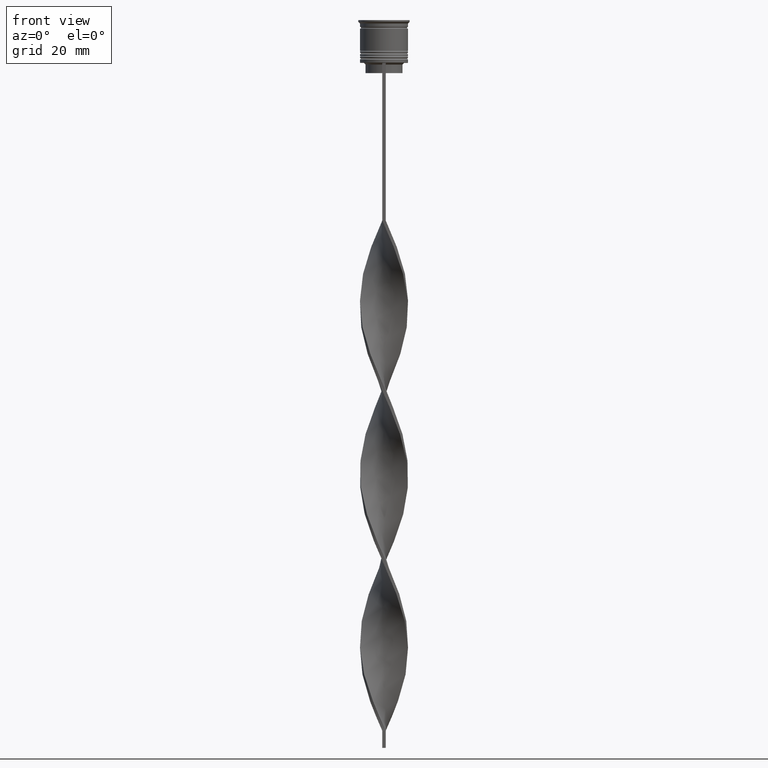
[diagram: clean part render]
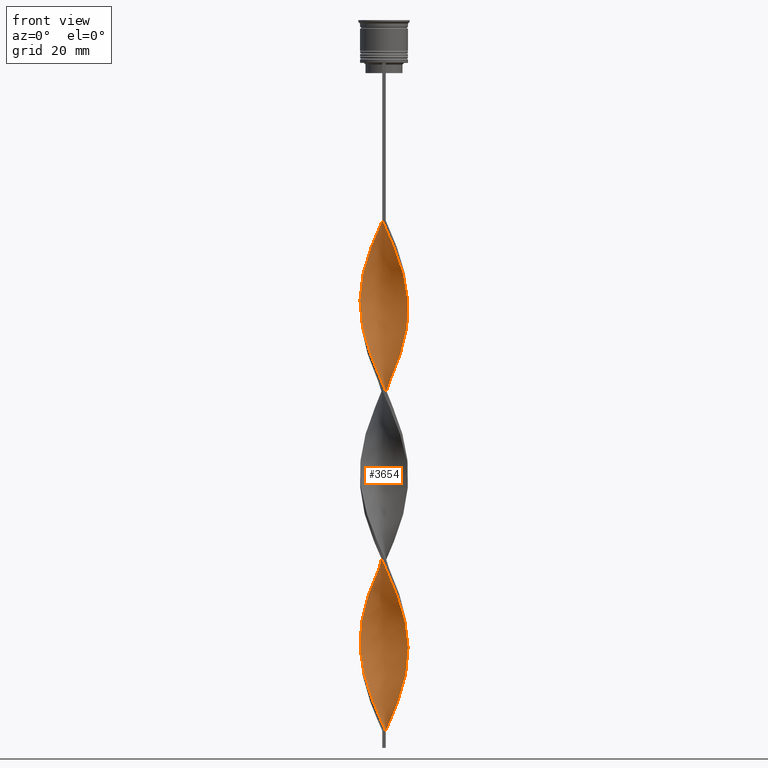
[diagram: same view with one face highlighted and labeled with its STEP entity id]
A machine part, front view. The second image highlights one B-rep face of the part: STEP entity #3654.
In plain terms, the highlighted face is a freeform B-spline surface patch.
Its self-contained STEP definition (entity closure, byte-faithful):
#8 = CARTESIAN_POINT ( 'NONE',  ( 3.259916572276687852, 6.214736031545977646, -149.0686274509803866 ) ) ;
#9 = CARTESIAN_POINT ( 'NONE',  ( -0.5000000000000000000, -6.999999999999997335, -58.50000000000000000 ) ) ;
#23 = CARTESIAN_POINT ( 'NONE',  ( 4.856933420439684568, -5.107160209221783376, -71.64705882352942012 ) ) ;
#44 = CARTESIAN_POINT ( 'NONE',  ( 5.533515242862682371, 4.364985304700184976, -95.01960784313726549 ) ) ;
#73 = CARTESIAN_POINT ( 'NONE',  ( -4.856933420439685456, 5.107160209221782488, -121.3137254901960631 ) ) ;
#85 = CARTESIAN_POINT ( 'NONE',  ( -4.346365046915568797, 5.509910242367891620, -119.8529411764705799 ) ) ;
#96 = CARTESIAN_POINT ( 'NONE',  ( -6.869610997245771955, -1.434728108918169154, -137.3823529411764639 ) ) ;
#114 = CARTESIAN_POINT ( 'NONE',  ( 4.110133708006296516, 5.688303868668619145, -99.40196078431372939 ) ) ;
#120 = CARTESIAN_POINT ( 'NONE',  ( 5.887437909151303828, 3.819433841014672648, -192.8921568627450824 ) ) ;
#133 = CARTESIAN_POINT ( 'NONE',  ( -6.869610997245777284, 1.434728108918170708, -78.95098039215686470 ) ) ;
#153 = CARTESIAN_POINT ( 'NONE',  ( 2.684036471161911575, 6.516811787577958981, -150.5294117647058840 ) ) ;
#157 = CARTESIAN_POINT ( 'NONE',  ( 6.869610997245771955, 1.434728108918170042, -187.0490196078431211 ) ) ;
#166 = CARTESIAN_POINT ( 'NONE',  ( -7.016273413796890956, -0.1480114280955932282, -134.4607843137254974 ) ) ;
#175 = CARTESIAN_POINT ( 'NONE',  ( 5.887437909151305604, -3.819433841014677533, -122.7745098039215605 ) ) ;
#176 = CARTESIAN_POINT ( 'NONE',  ( 4.856933420439684568, -5.107160209221783376, -71.64705882352943433 ) ) ;
#177 = CARTESIAN_POINT ( 'NONE',  ( 2.994927778012250741, -6.346684772736916003, -114.0098039215686185 ) ) ;
#182 = CARTESIAN_POINT ( 'NONE',  ( -4.637232685409776067, -5.307443892742481850, -147.6078431372548891 ) ) ;
#192 = CARTESIAN_POINT ( 'NONE',  ( 4.346365046915571462, 5.509910242367894284, -146.1470588235294201 ) ) ;
#194 = CARTESIAN_POINT ( 'NONE',  ( -1.440874626053876728, -6.899041090270183751, -103.7843137254901933 ) ) ;
#201 = CARTESIAN_POINT ( 'NONE',  ( -6.489012217373701930, -2.672586844758237490, -140.3039215686274588 ) ) ;
#217 = CARTESIAN_POINT ( 'NONE',  ( 3.583034730602820073, -6.069163844594761770, -115.4705882352941018 ) ) ;
#220 = CARTESIAN_POINT ( 'NONE',  ( 0.4999999999999991673, -7.000000000000002665, -108.1666666666666572 ) ) ;
#240 = CARTESIAN_POINT ( 'NONE',  ( -5.284803272772051308, -4.617451068294915473, -93.55882352941176805 ) ) ;
#259 = CARTESIAN_POINT ( 'NONE',  ( -0.5000000000000000000, 7.000000000000002665, -58.50000000000000000 ) ) ;
#260 = CARTESIAN_POINT ( 'NONE',  ( -3.259916572276684299, -6.214736031545979422, -198.7352941176470722 ) ) ;
#263 = CARTESIAN_POINT ( 'NONE',  ( -4.637232685409779620, 5.307443892742487179, -168.0588235294117680 ) ) ;
#284 = CARTESIAN_POINT ( 'NONE',  ( 6.595948007173689120, -2.396553752090988088, -78.95098039215686470 ) ) ;
#286 = CARTESIAN_POINT ( 'NONE',  ( -4.110133708006299180, 5.688303868668623586, -166.5980392156862706 ) ) ;
#316 = CARTESIAN_POINT ( 'NONE',  ( 7.016273413796890956, 0.1480114280955957262, -184.1274509803921546 ) ) ;
#324 = CARTESIAN_POINT ( 'NONE',  ( -5.712673125104412719, -4.127741927368047570, -191.4313725490196134 ) ) ;
#341 = CARTESIAN_POINT ( 'NONE',  ( -2.684036471161914239, -6.516811787577958093, -200.1960784313725696 ) ) ;
#349 = CARTESIAN_POINT ( 'NONE',  ( 0.5000000000000003331, 2.333333333333331261, -207.5000000000000000 ) ) ;
#388 = CARTESIAN_POINT ( 'NONE',  ( 2.406820825421679189, 6.624205700879066683, -103.7843137254901933 ) ) ;
#396 = CARTESIAN_POINT ( 'NONE',  ( -2.062455548607892375, 6.707926438924063817, -114.0098039215686185 ) ) ;
#409 = CARTESIAN_POINT ( 'NONE',  ( 6.818021416257458611, -1.785349159323424972, -179.7450980392157192 ) ) ;
#430 = CARTESIAN_POINT ( 'NONE',  ( -3.583034730602820961, 6.069163844594761770, -65.80392156862745878 ) ) ;
#433 = CARTESIAN_POINT ( 'NONE',  ( 0.7947600748740408783, -6.972686456695594615, -160.7549019607842808 ) ) ;
#438 = CARTESIAN_POINT ( 'NONE',  ( -0.5000000000000000000, -6.999999999999997335, -58.50000000000000000 ) ) ;
#451 = CARTESIAN_POINT ( 'NONE',  ( 5.085373964136230107, 4.836214598721332081, -96.48039215686274872 ) ) ;
#456 = CARTESIAN_POINT ( 'NONE',  ( 0.5000000000000008882, 6.999999999999997335, -207.5000000000000000 ) ) ;
#457 = CARTESIAN_POINT ( 'NONE',  ( 4.637232685409776067, 5.307443892742482738, -197.2745098039215463 ) ) ;
#466 = CARTESIAN_POINT ( 'NONE',  ( 5.533515242862682371, 4.364985304700184976, -194.3529411764705799 ) ) ;
#473 = CARTESIAN_POINT ( 'NONE',  ( 6.241360575439923508, 3.273882377329162985, -191.4313725490196134 ) ) ;
#481 = CARTESIAN_POINT ( 'NONE',  ( 7.002558135184068888, -0.7981649056490286442, -130.0784313725490335 ) ) ;
#484 = CARTESIAN_POINT ( 'NONE',  ( -3.583034730602820517, 6.069163844594761770, -65.80392156862747299 ) ) ;
#492 = CARTESIAN_POINT ( 'NONE',  ( -6.924005054333588483, 1.143745604390630444, -131.5392156862745310 ) ) ;
#501 = CARTESIAN_POINT ( 'NONE',  ( 2.994927778012250741, -6.346684772736916003, -114.0098039215686185 ) ) ;
#504 = CARTESIAN_POINT ( 'NONE',  ( 6.489012217373702818, 2.672586844758234825, -189.9705882352941160 ) ) ;
#511 = CARTESIAN_POINT ( 'NONE',  ( -3.583034730602817408, -6.069163844594757329, -150.5294117647058840 ) ) ;
#518 = CARTESIAN_POINT ( 'NONE',  ( -4.346365046915573238, -5.509910242367893396, -96.48039215686274872 ) ) ;
#521 = CARTESIAN_POINT ( 'NONE',  ( 6.869610997245777284, -1.434728108918172929, -128.6176470588235361 ) ) ;
#529 = CARTESIAN_POINT ( 'NONE',  ( 6.595948007173689120, -2.396553752090988088, -178.2843137254901933 ) ) ;
#542 = CARTESIAN_POINT ( 'NONE',  ( -5.712673125104412719, -4.127741927368047570, -92.09803921568628482 ) ) ;
#545 = CARTESIAN_POINT ( 'NONE',  ( 5.284803272772046867, -4.617451068294912808, -73.10784313725488914 ) ) ;
#546 = CARTESIAN_POINT ( 'NONE',  ( -6.736663859307489233, 2.071291312187312439, -176.8235294117647243 ) ) ;
#561 = CARTESIAN_POINT ( 'NONE',  ( -6.818021416257463940, -1.785349159323426527, -185.5882352941176237 ) ) ;
#563 = CARTESIAN_POINT ( 'NONE',  ( -2.406820825421679189, 6.624205700879071124, -162.2156862745098351 ) ) ;
#579 = CARTESIAN_POINT ( 'NONE',  ( 7.029988692409719242, -0.5021420494578376914, -83.33333333333332860 ) ) ;
#582 = CARTESIAN_POINT ( 'NONE',  ( 7.016273413796896286, -0.1480114280955963924, -131.5392156862745310 ) ) ;
#599 = CARTESIAN_POINT ( 'NONE',  ( -6.373874598089927623, -3.007758344858554977, -188.5098039215686185 ) ) ;
#602 = CARTESIAN_POINT ( 'NONE',  ( 0.4999999999999991673, -7.000000000000002665, -207.5000000000000000 ) ) ;
#610 = EDGE_CURVE ( 'NONE', #1014, #1916, #3441, .T. ) ;
#616 = CARTESIAN_POINT ( 'NONE',  ( -6.489012217373701930, -2.672586844758237490, -140.3039215686274588 ) ) ;
#626 = CARTESIAN_POINT ( 'NONE',  ( -6.595948007173694450, -2.396553752090990752, -187.0490196078431211 ) ) ;
#633 = CARTESIAN_POINT ( 'NONE',  ( -7.029988692409719242, 0.5021420494578385796, -133.0000000000000000 ) ) ;
#639 = CARTESIAN_POINT ( 'NONE',  ( -6.241360575439927949, 3.273882377329165205, -173.9019607843137294 ) ) ;
#650 = CARTESIAN_POINT ( 'NONE',  ( 0.5000000000000008882, 6.999999999999997335, -108.1666666666666572 ) ) ;
#671 = CARTESIAN_POINT ( 'NONE',  ( 7.029988692409719242, -0.5021420494578376914, -83.33333333333332860 ) ) ;
#688 = CARTESIAN_POINT ( 'NONE',  ( 6.489012217373702818, 2.672586844758234825, -90.63725490196078738 ) ) ;
#689 =( BOUNDED_SURFACE ( )  B_SPLINE_SURFACE ( 1, 2, ( 
 ( #3429, #2576, #1416, #2600, #1122, #2286, #1946, #2853, #826, #176, #545, #2913, #3233, #870, #284, #1471, #2039, #579, #1751, #2949, #2337, #2663, #3860, #3532, #1319, #1213, #451, #1588, #114, #2498, #715, #388, #2388, #2694, #3589, #1567, #1303, #3564, #2781, #2478, #2366, #2674, #2760, #73, #3099, #2068, #3372, #921, #2089, #3663, #3288, #633, #3695, #733, #96, #1026, #616, #2193, #2997, #3896, #1896, #2174, #1809, #1283, #2459, #3677, #897, #991, #1006, #3083, #433, #2160, #2800, #1607, #3395, #1917, #3874, #3356, #701, #1876, #1196, #3267, #3060, #409, #1788, #2981, #316, #1498, #157, #2287, #504, #3752, #1086, #466, #1628, #3200, #1417, #808, #2249, #2601, #3413, #3453, #3734 ),
 ( #1068, #3798, #768, #2227, #3115, #484, #747, #1124, #1932, #3430, #1048, #2871, #3491, #1948, #133, #1360, #1645, #1696, #791, #2819, #1676, #2837, #1985, #3138, #2536, #1339, #828, #1663, #2003, #2856, #2518, #194, #3718, #2896, #220, #3778, #2558, #1377, #177, #1966, #3162, #2212, #1392, #2579, #1106, #3181, #2273, #3474, #521, #1166, #582, #852, #3510, #3817, #2398, #1206, #2621, #1797, #2685, #2023, #2375, #3577, #8, #871, #1145, #2310, #3254, #2952, #1753, #1188, #3217, #563, #1735, #2933, #286, #263, #1472, #1450, #3534, #2078, #3838, #546, #2040, #2664, #3863, #909, #2640, #3236, #626, #2357, #2914, #324, #3599, #2339, #930, #2987, #3553, #2702, #888, #2057, #1509, #2096, #602 ) ),
 .UNSPECIFIED., .F., .F., .F. ) 
 B_SPLINE_SURFACE_WITH_KNOTS ( ( 2, 2 ),
 ( 3, 2, 2, 2, 2, 2, 2, 2, 2, 2, 2, 2, 2, 2, 2, 2, 2, 2, 2, 2, 2, 2, 2, 2, 2, 2, 2, 2, 2, 2, 2, 2, 2, 2, 2, 2, 2, 2, 2, 2, 2, 2, 2, 2, 2, 2, 2, 2, 2, 2, 2, 3 ),
 ( 0.000000000000000000, 1.000000000000000000 ),
 ( 0.000000000000000000, 0.01470588235294117627, 0.02941176470588235253, 0.04411764705882353227, 0.05882352941176470507, 0.07352941176470588480, 0.08823529411764706454, 0.1029411764705882304, 0.1176470588235294101, 0.1323529411764705899, 0.1470588235294117696, 0.1617647058823529493, 0.1764705882352941291, 0.1911764705882352811, 0.2058823529411764608, 0.2205882352941176405, 0.2352941176470588203, 0.2500000000000000000, 0.2647058823529411797, 0.2794117647058823595, 0.2941176470588235392, 0.3088235294117647189, 0.3235294117647058987, 0.3382352941176470784, 0.3529411764705882582, 0.3676470588235294379, 0.3823529411764705621, 0.3970588235294117418, 0.4117647058823529216, 0.4264705882352941013, 0.4411764705882352811, 0.4558823529411764608, 0.4705882352941176405, 0.4852941176470588203, 0.5000000000000000000, 0.5147058823529411242, 0.5294117647058823595, 0.5441176470588234837, 0.5588235294117647189, 0.5735294117647058432, 0.5882352941176470784, 0.6029411764705882026, 0.6176470588235294379, 0.6323529411764705621, 0.6470588235294117974, 0.6617647058823529216, 0.6764705882352941568, 0.6911764705882352811, 0.7058823529411765163, 0.7205882352941176405, 0.7352941176470588758, 0.7500000000000000000 ),
 .UNSPECIFIED. ) 
 GEOMETRIC_REPRESENTATION_ITEM ( )  RATIONAL_B_SPLINE_SURFACE ( (
 ( 1.000000000000000000, 0.9957341762950344677, 1.000000000000000000, 0.9957341762950344677, 1.000000000000000000, 0.9957341762950344677, 1.000000000000000000, 0.9957341762950344677, 1.000000000000000000, 0.9957341762950344677, 1.000000000000000000, 0.9957341762950344677, 1.000000000000000000, 0.9957341762950344677, 1.000000000000000000, 0.9957341762950344677, 1.000000000000000000, 0.9957341762950344677, 1.000000000000000000, 0.9957341762950344677, 1.000000000000000000, 0.9957341762950344677, 1.000000000000000000, 0.9957341762950344677, 1.000000000000000000, 0.9957341762950344677, 1.000000000000000000, 0.9957341762950344677, 1.000000000000000000, 0.9957341762950344677, 1.000000000000000000, 0.9957341762950344677, 1.000000000000000000, 0.9957341762950344677, 1.000000000000000000, 0.9957341762950344677, 1.000000000000000000, 0.9957341762950344677, 1.000000000000000000, 0.9957341762950344677, 1.000000000000000000, 0.9957341762950344677, 1.000000000000000000, 0.9957341762950344677, 1.000000000000000000, 0.9957341762950344677, 1.000000000000000000, 0.9957341762950344677, 1.000000000000000000, 0.9957341762950344677, 1.000000000000000000, 0.9957341762950344677, 1.000000000000000000, 0.9957341762950344677, 1.000000000000000000, 0.9957341762950344677, 1.000000000000000000, 0.9957341762950344677, 1.000000000000000000, 0.9957341762950344677, 1.000000000000000000, 0.9957341762950344677, 1.000000000000000000, 0.9957341762950344677, 1.000000000000000000, 0.9957341762950344677, 1.000000000000000000, 0.9957341762950344677, 1.000000000000000000, 0.9957341762950344677, 1.000000000000000000, 0.9957341762950344677, 1.000000000000000000, 0.9957341762950344677, 1.000000000000000000, 0.9957341762950344677, 1.000000000000000000, 0.9957341762950344677, 1.000000000000000000, 0.9957341762950344677, 1.000000000000000000, 0.9957341762950344677, 1.000000000000000000, 0.9957341762950344677, 1.000000000000000000, 0.9957341762950344677, 1.000000000000000000, 0.9957341762950344677, 1.000000000000000000, 0.9957341762950344677, 1.000000000000000000, 0.9957341762950344677, 1.000000000000000000, 0.9957341762950344677, 1.000000000000000000, 0.9957341762950344677, 1.000000000000000000, 0.9957341762950344677, 1.000000000000000000, 0.9957341762950344677, 1.000000000000000000, 0.9957341762950344677, 1.000000000000000000),
 ( 1.000000000000000000, 0.9957341762950344677, 1.000000000000000000, 0.9957341762950344677, 1.000000000000000000, 0.9957341762950344677, 1.000000000000000000, 0.9957341762950344677, 1.000000000000000000, 0.9957341762950344677, 1.000000000000000000, 0.9957341762950344677, 1.000000000000000000, 0.9957341762950344677, 1.000000000000000000, 0.9957341762950344677, 1.000000000000000000, 0.9957341762950344677, 1.000000000000000000, 0.9957341762950344677, 1.000000000000000000, 0.9957341762950344677, 1.000000000000000000, 0.9957341762950344677, 1.000000000000000000, 0.9957341762950344677, 1.000000000000000000, 0.9957341762950344677, 1.000000000000000000, 0.9957341762950344677, 1.000000000000000000, 0.9957341762950344677, 1.000000000000000000, 0.9957341762950344677, 1.000000000000000000, 0.9957341762950344677, 1.000000000000000000, 0.9957341762950344677, 1.000000000000000000, 0.9957341762950344677, 1.000000000000000000, 0.9957341762950344677, 1.000000000000000000, 0.9957341762950344677, 1.000000000000000000, 0.9957341762950344677, 1.000000000000000000, 0.9957341762950344677, 1.000000000000000000, 0.9957341762950344677, 1.000000000000000000, 0.9957341762950344677, 1.000000000000000000, 0.9957341762950344677, 1.000000000000000000, 0.9957341762950344677, 1.000000000000000000, 0.9957341762950344677, 1.000000000000000000, 0.9957341762950344677, 1.000000000000000000, 0.9957341762950344677, 1.000000000000000000, 0.9957341762950344677, 1.000000000000000000, 0.9957341762950344677, 1.000000000000000000, 0.9957341762950344677, 1.000000000000000000, 0.9957341762950344677, 1.000000000000000000, 0.9957341762950344677, 1.000000000000000000, 0.9957341762950344677, 1.000000000000000000, 0.9957341762950344677, 1.000000000000000000, 0.9957341762950344677, 1.000000000000000000, 0.9957341762950344677, 1.000000000000000000, 0.9957341762950344677, 1.000000000000000000, 0.9957341762950344677, 1.000000000000000000, 0.9957341762950344677, 1.000000000000000000, 0.9957341762950344677, 1.000000000000000000, 0.9957341762950344677, 1.000000000000000000, 0.9957341762950344677, 1.000000000000000000, 0.9957341762950344677, 1.000000000000000000, 0.9957341762950344677, 1.000000000000000000, 0.9957341762950344677, 1.000000000000000000, 0.9957341762950344677, 1.000000000000000000, 0.9957341762950344677, 1.000000000000000000) ) ) 
 REPRESENTATION_ITEM ( '' )  SURFACE ( )  );
#700 = ORIENTED_EDGE ( 'NONE', *, *, #2878, .T. ) ;
#701 = CARTESIAN_POINT ( 'NONE',  ( 5.284803272772046867, -4.617451068294912808, -172.4411764705882035 ) ) ;
#715 = CARTESIAN_POINT ( 'NONE',  ( 2.994927778012247632, 6.346684772736912450, -102.3235294117646959 ) ) ;
#724 = CARTESIAN_POINT ( 'NONE',  ( 6.736663859307483904, 2.071291312187309774, -89.17647058823528994 ) ) ;
#733 = CARTESIAN_POINT ( 'NONE',  ( -7.002558135184062671, -0.7981649056490314198, -135.9215686274509665 ) ) ;
#739 = CARTESIAN_POINT ( 'NONE',  ( 7.002558135184063559, 0.7981649056490307537, -185.5882352941176237 ) ) ;
#747 = CARTESIAN_POINT ( 'NONE',  ( -4.110133708006299180, 5.688303868668623586, -67.26470588235292780 ) ) ;
#752 = CARTESIAN_POINT ( 'NONE',  ( -1.148645523694208137, -6.953668176878983864, -156.3725490196078454 ) ) ;
#763 = CARTESIAN_POINT ( 'NONE',  ( 6.043273861597169727, 3.567750136113302162, -140.3039215686274588 ) ) ;
#768 = CARTESIAN_POINT ( 'NONE',  ( -1.777733174557943663, 6.788936938879031047, -61.42156862745097357 ) ) ;
#776 = CARTESIAN_POINT ( 'NONE',  ( 7.029988692409719242, -0.5021420494578376914, -182.6666666666666856 ) ) ;
#787 = CARTESIAN_POINT ( 'NONE',  ( 2.062455548607894151, 6.707926438924069146, -151.9901960784313530 ) ) ;
#791 = CARTESIAN_POINT ( 'NONE',  ( -6.924005054333593812, -1.143745604390630666, -84.79411764705882604 ) ) ;
#797 = CARTESIAN_POINT ( 'NONE',  ( -6.241360575439923508, -3.273882377329162985, -141.7647058823529562 ) ) ;
#804 = CARTESIAN_POINT ( 'NONE',  ( 3.835796673391459688, 5.912660275514002528, -147.6078431372548891 ) ) ;
#808 = CARTESIAN_POINT ( 'NONE',  ( 3.583034730602818296, 6.069163844594755552, -200.1960784313725981 ) ) ;
#816 = CARTESIAN_POINT ( 'NONE',  ( 2.062455548607891487, -6.707926438924064705, -163.6764705882352757 ) ) ;
#824 = CARTESIAN_POINT ( 'NONE',  ( -4.856933420439688120, -5.107160209221786928, -95.01960784313726549 ) ) ;
#826 = CARTESIAN_POINT ( 'NONE',  ( 4.346365046915568797, -5.509910242367891620, -70.18627450980390847 ) ) ;
#828 = CARTESIAN_POINT ( 'NONE',  ( -4.346365046915573238, -5.509910242367893396, -96.48039215686274872 ) ) ;
#848 = CARTESIAN_POINT ( 'NONE',  ( 6.373874598089928512, 3.007758344858553201, -138.8431372549019329 ) ) ;
#852 = CARTESIAN_POINT ( 'NONE',  ( 7.029988692409723683, 0.5021420494578359150, -133.0000000000000000 ) ) ;
#870 = CARTESIAN_POINT ( 'NONE',  ( 6.373874598089922294, -3.007758344858553201, -77.49019607843138147 ) ) ;
#871 = CARTESIAN_POINT ( 'NONE',  ( 2.684036471161911575, 6.516811787577959869, -150.5294117647058840 ) ) ;
#885 = CARTESIAN_POINT ( 'NONE',  ( -6.595948007173694450, -2.396553752090990752, -187.0490196078431211 ) ) ;
#888 = CARTESIAN_POINT ( 'NONE',  ( -2.062455548607893263, -6.707926438924069146, -201.6568627450980387 ) ) ;
#897 = CARTESIAN_POINT ( 'NONE',  ( -1.777733174557940776, -6.788936938879025718, -154.9117647058823479 ) ) ;
#909 = CARTESIAN_POINT ( 'NONE',  ( -7.029988692409723683, -0.5021420494578368032, -182.6666666666666572 ) ) ;
#921 = CARTESIAN_POINT ( 'NONE',  ( -6.373874598089922294, 3.007758344858553201, -127.1568627450980102 ) ) ;
#930 = CARTESIAN_POINT ( 'NONE',  ( -4.346365046915573238, -5.509910242367893396, -195.8137254901960773 ) ) ;
#942 = CARTESIAN_POINT ( 'NONE',  ( 3.583034730602818740, 6.069163844594755552, -100.8627450980392126 ) ) ;
#958 = CARTESIAN_POINT ( 'NONE',  ( -1.440874626053873619, 6.899041090270179311, -112.5490196078431495 ) ) ;
#981 = CARTESIAN_POINT ( 'NONE',  ( 2.062455548607891487, -6.707926438924064705, -64.34313725490196134 ) ) ;
#991 = CARTESIAN_POINT ( 'NONE',  ( -1.148645523694208137, -6.953668176878983864, -156.3725490196078454 ) ) ;
#996 = CARTESIAN_POINT ( 'NONE',  ( -5.712673125104407390, 4.127741927368045793, -124.2352941176470580 ) ) ;
#1001 = CARTESIAN_POINT ( 'NONE',  ( -1.777733174557943663, 6.788936938879031047, -61.42156862745097357 ) ) ;
#1006 = CARTESIAN_POINT ( 'NONE',  ( -0.5000000000000000000, -6.999999999999997335, -157.8333333333333144 ) ) ;
#1013 = CARTESIAN_POINT ( 'NONE',  ( 0.7947600748740408783, -6.972686456695594615, -61.42156862745097357 ) ) ;
#1014 = VERTEX_POINT ( 'NONE', #456 ) ;
#1022 = CARTESIAN_POINT ( 'NONE',  ( -5.085373964136232772, 4.836214598721336522, -70.18627450980390847 ) ) ;
#1026 = CARTESIAN_POINT ( 'NONE',  ( -6.736663859307484792, -2.071291312187307998, -138.8431372549019045 ) ) ;
#1037 = CARTESIAN_POINT ( 'NONE',  ( 2.994927778012247632, 6.346684772736912450, -201.6568627450980387 ) ) ;
#1048 = CARTESIAN_POINT ( 'NONE',  ( -5.887437909151306492, 3.819433841014676645, -73.10784313725488914 ) ) ;
#1057 = CARTESIAN_POINT ( 'NONE',  ( 6.736663859307483904, 2.071291312187309774, -188.5098039215686185 ) ) ;
#1066 = CARTESIAN_POINT ( 'NONE',  ( -2.994927778012249409, 6.346684772736916891, -163.6764705882352757 ) ) ;
#1068 = CARTESIAN_POINT ( 'NONE',  ( -0.5000000000000000000, 7.000000000000002665, -58.50000000000000000 ) ) ;
#1073 = CARTESIAN_POINT ( 'NONE',  ( 5.712673125104408278, -4.127741927368044017, -173.9019607843137294 ) ) ;
#1082 = CARTESIAN_POINT ( 'NONE',  ( 5.284803272772052196, 4.617451068294914585, -143.2254901960784537 ) ) ;
#1086 = CARTESIAN_POINT ( 'NONE',  ( 5.887437909151303828, 3.819433841014672648, -192.8921568627450824 ) ) ;
#1093 = CARTESIAN_POINT ( 'NONE',  ( 3.835796673391455247, -5.912660275513998975, -168.0588235294117680 ) ) ;
#1102 = CARTESIAN_POINT ( 'NONE',  ( 6.869610997245777284, -1.434728108918172929, -128.6176470588235361 ) ) ;
#1106 = CARTESIAN_POINT ( 'NONE',  ( 5.887437909151305604, -3.819433841014677533, -122.7745098039215605 ) ) ;
#1113 = CARTESIAN_POINT ( 'NONE',  ( 6.818021416257458611, -1.785349159323424972, -179.7450980392157476 ) ) ;
#1120 = CARTESIAN_POINT ( 'NONE',  ( -6.924005054333593812, -1.143745604390630666, -84.79411764705882604 ) ) ;
#1122 = CARTESIAN_POINT ( 'NONE',  ( 2.062455548607891487, -6.707926438924064705, -64.34313725490196134 ) ) ;
#1124 = CARTESIAN_POINT ( 'NONE',  ( -4.637232685409779620, 5.307443892742487179, -68.72549019607842524 ) ) ;
#1143 = CARTESIAN_POINT ( 'NONE',  ( -0.7947600748740422105, -6.972686456695599944, -105.2450980392156765 ) ) ;
#1145 = CARTESIAN_POINT ( 'NONE',  ( 2.062455548607894151, 6.707926438924069146, -151.9901960784313530 ) ) ;
#1163 = CARTESIAN_POINT ( 'NONE',  ( -0.1486455236942075542, -7.046331823121019688, -206.0392156862745026 ) ) ;
#1166 = CARTESIAN_POINT ( 'NONE',  ( 7.002558135184068000, -0.7981649056490286442, -130.0784313725490335 ) ) ;
#1188 = CARTESIAN_POINT ( 'NONE',  ( -1.148645523694208581, 6.953668176878987417, -159.2941176470588118 ) ) ;
#1196 = CARTESIAN_POINT ( 'NONE',  ( 6.043273861597165286, -3.567750136113298165, -175.3627450980391984 ) ) ;
#1204 = CARTESIAN_POINT ( 'NONE',  ( -3.835796673391458800, -5.912660275514003416, -197.2745098039215463 ) ) ;
#1206 = CARTESIAN_POINT ( 'NONE',  ( 6.373874598089928512, 3.007758344858553201, -138.8431372549019045 ) ) ;
#1213 = CARTESIAN_POINT ( 'NONE',  ( 5.533515242862682371, 4.364985304700184976, -95.01960784313725128 ) ) ;
#1222 = CARTESIAN_POINT ( 'NONE',  ( -5.712673125104412719, -4.127741927368047570, -191.4313725490196134 ) ) ;
#1226 = VECTOR ( 'NONE', #3578, 1000.000000000000000 ) ;
#1237 = CARTESIAN_POINT ( 'NONE',  ( 6.595948007173689120, -2.396553752090988088, -78.95098039215686470 ) ) ;
#1255 = CARTESIAN_POINT ( 'NONE',  ( 5.085373964136230107, 4.836214598721332081, -96.48039215686274872 ) ) ;
#1272 = CARTESIAN_POINT ( 'NONE',  ( 5.712673125104408278, -4.127741927368044017, -74.56862745098038658 ) ) ;
#1283 = CARTESIAN_POINT ( 'NONE',  ( -3.583034730602816964, -6.069163844594757329, -150.5294117647058840 ) ) ;
#1292 = CARTESIAN_POINT ( 'NONE',  ( -4.856933420439685456, 5.107160209221782488, -121.3137254901960773 ) ) ;
#1303 = CARTESIAN_POINT ( 'NONE',  ( -0.7947600748740394350, 6.972686456695594615, -111.0882352941176379 ) ) ;
#1319 = CARTESIAN_POINT ( 'NONE',  ( 5.887437909151303828, 3.819433841014672648, -93.55882352941176805 ) ) ;
#1324 = CARTESIAN_POINT ( 'NONE',  ( 5.533515242862682371, 4.364985304700184976, -194.3529411764705799 ) ) ;
#1339 = CARTESIAN_POINT ( 'NONE',  ( -4.856933420439688120, -5.107160209221786928, -95.01960784313725128 ) ) ;
#1349 = CARTESIAN_POINT ( 'NONE',  ( 4.346365046915568797, -5.509910242367891620, -169.5196078431372371 ) ) ;
#1357 = CARTESIAN_POINT ( 'NONE',  ( -1.148645523694208581, 6.953668176878987417, -159.2941176470588118 ) ) ;
#1359 =( BOUNDED_CURVE ( )  B_SPLINE_CURVE ( 2, ( #2475, #3675, #1001, #2210, #2171, #430, #2494, #3691, #1022, #3411, #1930, #2189, #3814, #3427, #2912, #1963, #1660, #2284, #1120, #2555, #2867, #1715, #3489, #542, #240, #824, #518, #1432, #3176, #3214, #1692, #2618, #1143, #1998, #3159, #1375, #2852, #3749, #501, #217, #2533, #1414, #1674, #2599, #175, #2306, #2892, #3775, #1102, #481, #1639, #2833, #3507, #3197, #2269, #848, #763, #3470, #1082, #2020, #192, #804, #2245, #153, #787, #3449, #3132, #1389, #1945, #1357, #2575, #1981, #1066, #3795, #3732, #2225, #2929, #2948, #2336, #639, #3884, #2636, #1487, #3835, #3549, #2095, #3858, #561, #885, #599, #1773, #1222, #1469, #2055, #1817, #1204, #260, #341, #3615, #2661, #3529, #1163, #2395 ),
 .UNSPECIFIED., .F., .T. ) 
 B_SPLINE_CURVE_WITH_KNOTS ( ( 3, 2, 2, 2, 2, 2, 2, 2, 2, 2, 2, 2, 2, 2, 2, 2, 2, 2, 2, 2, 2, 2, 2, 2, 2, 2, 2, 2, 2, 2, 2, 2, 2, 2, 2, 2, 2, 2, 2, 2, 2, 2, 2, 2, 2, 2, 2, 2, 2, 2, 2, 3 ),
 ( 0.000000000000000000, 0.01470588235294117453, 0.02941176470588234906, 0.04411764705882353227, 0.05882352941176469813, 0.07352941176470588480, 0.08823529411764706454, 0.1029411764705882443, 0.1176470588235293963, 0.1323529411764705899, 0.1470588235294117696, 0.1617647058823529493, 0.1764705882352941291, 0.1911764705882352811, 0.2058823529411764885, 0.2205882352941176405, 0.2352941176470587925, 0.2500000000000000000, 0.2647058823529411797, 0.2794117647058823595, 0.2941176470588235392, 0.3088235294117647189, 0.3235294117647058987, 0.3382352941176470229, 0.3529411764705882582, 0.3676470588235294379, 0.3823529411764705621, 0.3970588235294117418, 0.4117647058823529771, 0.4264705882352941013, 0.4411764705882352811, 0.4558823529411764608, 0.4705882352941175850, 0.4852941176470588203, 0.5000000000000000000, 0.5147058823529411242, 0.5294117647058823595, 0.5441176470588234837, 0.5588235294117647189, 0.5735294117647058432, 0.5882352941176470784, 0.6029411764705882026, 0.6176470588235294379, 0.6323529411764705621, 0.6470588235294117974, 0.6617647058823529216, 0.6764705882352940458, 0.6911764705882351700, 0.7058823529411765163, 0.7205882352941176405, 0.7352941176470588758, 0.7500000000000000000 ),
 .UNSPECIFIED. ) 
 CURVE ( )  GEOMETRIC_REPRESENTATION_ITEM ( )  RATIONAL_B_SPLINE_CURVE ( ( 1.000000000000000000, 0.9957341762950344677, 1.000000000000000000, 0.9957341762950344677, 1.000000000000000000, 0.9957341762950344677, 1.000000000000000000, 0.9957341762950344677, 1.000000000000000000, 0.9957341762950344677, 1.000000000000000000, 0.9957341762950344677, 1.000000000000000000, 0.9957341762950344677, 1.000000000000000000, 0.9957341762950344677, 1.000000000000000000, 0.9957341762950344677, 1.000000000000000000, 0.9957341762950344677, 1.000000000000000000, 0.9957341762950344677, 1.000000000000000000, 0.9957341762950344677, 1.000000000000000000, 0.9957341762950344677, 1.000000000000000000, 0.9957341762950344677, 1.000000000000000000, 0.9957341762950344677, 1.000000000000000000, 0.9957341762950344677, 1.000000000000000000, 0.9957341762950344677, 1.000000000000000000, 0.9957341762950344677, 1.000000000000000000, 0.9957341762950344677, 1.000000000000000000, 0.9957341762950344677, 1.000000000000000000, 0.9957341762950344677, 1.000000000000000000, 0.9957341762950344677, 1.000000000000000000, 0.9957341762950344677, 1.000000000000000000, 0.9957341762950344677, 1.000000000000000000, 0.9957341762950344677, 1.000000000000000000, 0.9957341762950344677, 1.000000000000000000, 0.9957341762950344677, 1.000000000000000000, 0.9957341762950344677, 1.000000000000000000, 0.9957341762950344677, 1.000000000000000000, 0.9957341762950344677, 1.000000000000000000, 0.9957341762950344677, 1.000000000000000000, 0.9957341762950344677, 1.000000000000000000, 0.9957341762950344677, 1.000000000000000000, 0.9957341762950344677, 1.000000000000000000, 0.9957341762950344677, 1.000000000000000000, 0.9957341762950344677, 1.000000000000000000, 0.9957341762950344677, 1.000000000000000000, 0.9957341762950344677, 1.000000000000000000, 0.9957341762950344677, 1.000000000000000000, 0.9957341762950344677, 1.000000000000000000, 0.9957341762950344677, 1.000000000000000000, 0.9957341762950344677, 1.000000000000000000, 0.9957341762950344677, 1.000000000000000000, 0.9957341762950344677, 1.000000000000000000, 0.9957341762950344677, 1.000000000000000000, 0.9957341762950344677, 1.000000000000000000, 0.9957341762950344677, 1.000000000000000000, 0.9957341762950344677, 1.000000000000000000, 0.9957341762950344677, 1.000000000000000000, 0.9957341762950344677, 1.000000000000000000, 0.9957341762950344677, 1.000000000000000000 ) ) 
 REPRESENTATION_ITEM ( '' )  );
#1360 = CARTESIAN_POINT ( 'NONE',  ( -7.002558135184068000, 0.7981649056490309757, -80.41176470588234793 ) ) ;
#1367 = CARTESIAN_POINT ( 'NONE',  ( -6.373874598089922294, 3.007758344858553201, -127.1568627450980244 ) ) ;
#1375 = CARTESIAN_POINT ( 'NONE',  ( 1.148645523694209247, -6.953668176878987417, -109.6274509803921404 ) ) ;
#1377 = CARTESIAN_POINT ( 'NONE',  ( 2.406820825421679189, -6.624205700879071124, -112.5490196078431495 ) ) ;
#1381 = CARTESIAN_POINT ( 'NONE',  ( -6.595948007173689120, 2.396553752090990752, -128.6176470588235361 ) ) ;
#1389 = CARTESIAN_POINT ( 'NONE',  ( 0.1486455236942084146, 7.046331823121019688, -156.3725490196078454 ) ) ;
#1392 = CARTESIAN_POINT ( 'NONE',  ( 5.085373964136232772, -4.836214598721336522, -119.8529411764705799 ) ) ;
#1399 = CARTESIAN_POINT ( 'NONE',  ( 6.924005054333587594, -1.143745604390631110, -181.2058823529411598 ) ) ;
#1414 = CARTESIAN_POINT ( 'NONE',  ( 4.637232685409777844, -5.307443892742488067, -118.3921568627451109 ) ) ;
#1416 = CARTESIAN_POINT ( 'NONE',  ( 0.7947600748740408783, -6.972686456695594615, -61.42156862745097357 ) ) ;
#1417 = CARTESIAN_POINT ( 'NONE',  ( 4.110133708006296516, 5.688303868668619145, -198.7352941176470722 ) ) ;
#1432 = CARTESIAN_POINT ( 'NONE',  ( -3.835796673391458800, -5.912660275514003416, -97.94117647058824616 ) ) ;
#1450 = CARTESIAN_POINT ( 'NONE',  ( -5.533515242862685035, 4.364985304700188529, -170.9803921568627629 ) ) ;
#1469 = CARTESIAN_POINT ( 'NONE',  ( -5.284803272772051308, -4.617451068294915473, -192.8921568627450824 ) ) ;
#1471 = CARTESIAN_POINT ( 'NONE',  ( 6.818021416257458611, -1.785349159323424972, -80.41176470588234793 ) ) ;
#1472 = CARTESIAN_POINT ( 'NONE',  ( -5.085373964136232772, 4.836214598721336522, -169.5196078431372371 ) ) ;
#1487 = CARTESIAN_POINT ( 'NONE',  ( -6.869610997245777284, 1.434728108918170708, -178.2843137254901933 ) ) ;
#1498 = CARTESIAN_POINT ( 'NONE',  ( 7.002558135184062671, 0.7981649056490307537, -185.5882352941176237 ) ) ;
#1509 = CARTESIAN_POINT ( 'NONE',  ( -0.7947600748740422105, -6.972686456695599944, -204.5784313725490335 ) ) ;
#1542 = CARTESIAN_POINT ( 'NONE',  ( 7.002558135184063559, 0.7981649056490307537, -86.25490196078432348 ) ) ;
#1558 = CARTESIAN_POINT ( 'NONE',  ( 6.924005054333587594, -1.143745604390631110, -81.87254901960783116 ) ) ;
#1567 = CARTESIAN_POINT ( 'NONE',  ( -0.1486455236942086366, 7.046331823121012583, -109.6274509803921546 ) ) ;
#1588 = CARTESIAN_POINT ( 'NONE',  ( 4.637232685409776067, 5.307443892742482738, -97.94117647058824616 ) ) ;
#1596 = CARTESIAN_POINT ( 'NONE',  ( 6.241360575439923508, 3.273882377329162985, -92.09803921568628482 ) ) ;
#1607 = CARTESIAN_POINT ( 'NONE',  ( 2.684036471161910242, -6.516811787577953652, -165.1372549019608016 ) ) ;
#1628 = CARTESIAN_POINT ( 'NONE',  ( 5.085373964136230107, 4.836214598721332081, -195.8137254901960773 ) ) ;
#1639 = CARTESIAN_POINT ( 'NONE',  ( 7.016273413796896286, -0.1480114280955963924, -131.5392156862745310 ) ) ;
#1645 = CARTESIAN_POINT ( 'NONE',  ( -7.016273413796895397, 0.1480114280955971418, -81.87254901960783116 ) ) ;
#1651 = CARTESIAN_POINT ( 'NONE',  ( 0.5000000000000008882, 6.999999999999997335, -207.5000000000000000 ) ) ;
#1660 = CARTESIAN_POINT ( 'NONE',  ( -7.016273413796895397, 0.1480114280955971418, -81.87254901960783116 ) ) ;
#1663 = CARTESIAN_POINT ( 'NONE',  ( -3.835796673391458800, -5.912660275514003416, -97.94117647058824616 ) ) ;
#1670 = CARTESIAN_POINT ( 'NONE',  ( -5.887437909151304716, -3.819433841014671760, -143.2254901960784537 ) ) ;
#1674 = CARTESIAN_POINT ( 'NONE',  ( 5.085373964136232772, -4.836214598721336522, -119.8529411764705799 ) ) ;
#1675 = FACE_OUTER_BOUND ( 'NONE', #3089, .T. ) ;
#1676 = CARTESIAN_POINT ( 'NONE',  ( -6.595948007173694450, -2.396553752090990752, -87.71568627450979250 ) ) ;
#1681 = CARTESIAN_POINT ( 'NONE',  ( -6.736663859307484792, -2.071291312187307554, -138.8431372549019329 ) ) ;
#1692 = CARTESIAN_POINT ( 'NONE',  ( -2.062455548607893263, -6.707926438924069146, -102.3235294117646959 ) ) ;
#1696 = CARTESIAN_POINT ( 'NONE',  ( -7.029988692409723683, -0.5021420494578368032, -83.33333333333332860 ) ) ;
#1715 = CARTESIAN_POINT ( 'NONE',  ( -6.373874598089927623, -3.007758344858554977, -89.17647058823528994 ) ) ;
#1720 = ORIENTED_EDGE ( 'NONE', *, *, #610, .F. ) ;
#1735 = CARTESIAN_POINT ( 'NONE',  ( -2.994927778012249409, 6.346684772736916891, -163.6764705882352757 ) ) ;
#1748 = CARTESIAN_POINT ( 'NONE',  ( 0.4999999999999991673, -7.000000000000002665, -207.5000000000000000 ) ) ;
#1751 = CARTESIAN_POINT ( 'NONE',  ( 7.016273413796890956, 0.1480114280955957262, -84.79411764705882604 ) ) ;
#1753 = CARTESIAN_POINT ( 'NONE',  ( -0.5000000000000000000, 7.000000000000002665, -157.8333333333333144 ) ) ;
#1773 = CARTESIAN_POINT ( 'NONE',  ( -6.043273861597169727, -3.567750136113299941, -189.9705882352941160 ) ) ;
#1788 = CARTESIAN_POINT ( 'NONE',  ( 6.924005054333587594, -1.143745604390631110, -181.2058823529411598 ) ) ;
#1797 = CARTESIAN_POINT ( 'NONE',  ( 5.712673125104412719, 4.127741927368047570, -141.7647058823529562 ) ) ;
#1809 = CARTESIAN_POINT ( 'NONE',  ( -4.110133708006299180, -5.688303868668616481, -149.0686274509803866 ) ) ;
#1817 = CARTESIAN_POINT ( 'NONE',  ( -4.346365046915573238, -5.509910242367893396, -195.8137254901960773 ) ) ;
#1865 = CARTESIAN_POINT ( 'NONE',  ( 2.406820825421679189, 6.624205700879067571, -103.7843137254901791 ) ) ;
#1876 = CARTESIAN_POINT ( 'NONE',  ( 5.712673125104408278, -4.127741927368044905, -173.9019607843137294 ) ) ;
#1896 = CARTESIAN_POINT ( 'NONE',  ( -5.085373964136228331, -4.836214598721334745, -146.1470588235294201 ) ) ;
#1901 = VERTEX_POINT ( 'NONE', #259 ) ;
#1916 = VERTEX_POINT ( 'NONE', #1748 ) ;
#1917 = CARTESIAN_POINT ( 'NONE',  ( 3.835796673391455691, -5.912660275513999864, -168.0588235294117680 ) ) ;
#1920 = CARTESIAN_POINT ( 'NONE',  ( 1.148645523694207471, 6.953668176878983864, -206.0392156862745026 ) ) ;
#1930 = CARTESIAN_POINT ( 'NONE',  ( -5.887437909151306492, 3.819433841014676645, -73.10784313725488914 ) ) ;
#1932 = CARTESIAN_POINT ( 'NONE',  ( -5.085373964136232772, 4.836214598721336522, -70.18627450980390847 ) ) ;
#1939 = CARTESIAN_POINT ( 'NONE',  ( -2.406820825421679633, -6.624205700879066683, -153.4509803921568789 ) ) ;
#1945 = CARTESIAN_POINT ( 'NONE',  ( -0.5000000000000000000, 7.000000000000002665, -157.8333333333333144 ) ) ;
#1946 = CARTESIAN_POINT ( 'NONE',  ( 3.259916572276681634, -6.214736031545974981, -67.26470588235292780 ) ) ;
#1948 = CARTESIAN_POINT ( 'NONE',  ( -6.736663859307489233, 2.071291312187312439, -77.49019607843138147 ) ) ;
#1954 = CARTESIAN_POINT ( 'NONE',  ( 6.869610997245771955, 1.434728108918170042, -187.0490196078431211 ) ) ;
#1963 = CARTESIAN_POINT ( 'NONE',  ( -7.002558135184068888, 0.7981649056490309757, -80.41176470588234793 ) ) ;
#1966 = CARTESIAN_POINT ( 'NONE',  ( 3.583034730602819629, -6.069163844594761770, -115.4705882352940876 ) ) ;
#1975 = CARTESIAN_POINT ( 'NONE',  ( -4.110133708006299180, -5.688303868668616481, -149.0686274509803866 ) ) ;
#1981 = CARTESIAN_POINT ( 'NONE',  ( -2.406820825421679189, 6.624205700879072012, -162.2156862745098351 ) ) ;
#1985 = CARTESIAN_POINT ( 'NONE',  ( -6.043273861597169727, -3.567750136113299941, -90.63725490196078738 ) ) ;
#1990 = CARTESIAN_POINT ( 'NONE',  ( 0.1486455236942082203, -7.046331823121012583, -159.2941176470588118 ) ) ;
#1998 = CARTESIAN_POINT ( 'NONE',  ( -0.1486455236942075542, -7.046331823121019688, -106.7058823529411882 ) ) ;
#2003 = CARTESIAN_POINT ( 'NONE',  ( -3.259916572276684299, -6.214736031545979422, -99.40196078431372939 ) ) ;
#2020 = CARTESIAN_POINT ( 'NONE',  ( 4.856933420439687232, 5.107160209221788705, -144.6862745098039227 ) ) ;
#2023 = CARTESIAN_POINT ( 'NONE',  ( 4.856933420439687232, 5.107160209221788705, -144.6862745098039227 ) ) ;
#2039 = CARTESIAN_POINT ( 'NONE',  ( 6.924005054333587594, -1.143745604390631110, -81.87254901960783116 ) ) ;
#2040 = CARTESIAN_POINT ( 'NONE',  ( -6.869610997245777284, 1.434728108918170708, -178.2843137254901933 ) ) ;
#2055 = CARTESIAN_POINT ( 'NONE',  ( -4.856933420439688120, -5.107160209221786928, -194.3529411764705799 ) ) ;
#2057 = CARTESIAN_POINT ( 'NONE',  ( -1.440874626053876728, -6.899041090270183751, -203.1176470588235361 ) ) ;
#2068 = CARTESIAN_POINT ( 'NONE',  ( -5.712673125104407390, 4.127741927368045793, -124.2352941176470580 ) ) ;
#2078 = CARTESIAN_POINT ( 'NONE',  ( -6.241360575439927061, 3.273882377329165205, -173.9019607843137294 ) ) ;
#2089 = CARTESIAN_POINT ( 'NONE',  ( -6.595948007173689120, 2.396553752090990752, -128.6176470588235361 ) ) ;
#2095 = CARTESIAN_POINT ( 'NONE',  ( -7.029988692409724571, -0.5021420494578368032, -182.6666666666666856 ) ) ;
#2096 = CARTESIAN_POINT ( 'NONE',  ( -0.1486455236942075542, -7.046331823121019688, -206.0392156862745026 ) ) ;
#2109 = CARTESIAN_POINT ( 'NONE',  ( 2.994927778012247632, 6.346684772736912450, -102.3235294117646959 ) ) ;
#2127 = CARTESIAN_POINT ( 'NONE',  ( -0.7947600748740394350, 6.972686456695594615, -111.0882352941176379 ) ) ;
#2152 = CARTESIAN_POINT ( 'NONE',  ( 3.835796673391455247, -5.912660275513998975, -68.72549019607842524 ) ) ;
#2160 = CARTESIAN_POINT ( 'NONE',  ( 1.440874626053873842, -6.899041090270179311, -162.2156862745098351 ) ) ;
#2165 = CARTESIAN_POINT ( 'NONE',  ( 1.440874626053873619, -6.899041090270179311, -62.88235294117647101 ) ) ;
#2171 = CARTESIAN_POINT ( 'NONE',  ( -2.994927778012249409, 6.346684772736916891, -64.34313725490196134 ) ) ;
#2174 = CARTESIAN_POINT ( 'NONE',  ( -4.637232685409776956, -5.307443892742481850, -147.6078431372548891 ) ) ;
#2179 = CARTESIAN_POINT ( 'NONE',  ( 5.284803272772046867, -4.617451068294912808, -73.10784313725488914 ) ) ;
#2186 = ORIENTED_EDGE ( 'NONE', *, *, #2623, .T. ) ;
#2189 = CARTESIAN_POINT ( 'NONE',  ( -6.241360575439927949, 3.273882377329165205, -74.56862745098038658 ) ) ;
#2193 = CARTESIAN_POINT ( 'NONE',  ( -6.241360575439922620, -3.273882377329162985, -141.7647058823529562 ) ) ;
#2203 = CARTESIAN_POINT ( 'NONE',  ( 2.406820825421679189, 6.624205700879067571, -203.1176470588235361 ) ) ;
#2210 = CARTESIAN_POINT ( 'NONE',  ( -2.406820825421679189, 6.624205700879072012, -62.88235294117647101 ) ) ;
#2212 = CARTESIAN_POINT ( 'NONE',  ( 4.637232685409778732, -5.307443892742488067, -118.3921568627451109 ) ) ;
#2217 = CARTESIAN_POINT ( 'NONE',  ( -6.818021416257460388, 1.785349159323422308, -130.0784313725490335 ) ) ;
#2225 = CARTESIAN_POINT ( 'NONE',  ( -4.637232685409778732, 5.307443892742487179, -168.0588235294117680 ) ) ;
#2227 = CARTESIAN_POINT ( 'NONE',  ( -2.406820825421679189, 6.624205700879071124, -62.88235294117647811 ) ) ;
#2232 = CARTESIAN_POINT ( 'NONE',  ( 0.7947600748740408783, -6.972686456695594615, -160.7549019607842808 ) ) ;
#2245 = CARTESIAN_POINT ( 'NONE',  ( 3.259916572276687852, 6.214736031545977646, -149.0686274509803866 ) ) ;
#2249 = CARTESIAN_POINT ( 'NONE',  ( 2.994927778012247632, 6.346684772736912450, -201.6568627450980387 ) ) ;
#2257 = CARTESIAN_POINT ( 'NONE',  ( 5.284803272772046867, -4.617451068294912808, -172.4411764705882035 ) ) ;
#2269 = CARTESIAN_POINT ( 'NONE',  ( 6.595948007173694450, 2.396553752090989864, -137.3823529411764639 ) ) ;
#2273 = CARTESIAN_POINT ( 'NONE',  ( 6.489012217373708147, -2.672586844758236158, -125.6960784313725412 ) ) ;
#2277 = CARTESIAN_POINT ( 'NONE',  ( 7.016273413796890956, 0.1480114280955957262, -184.1274509803921546 ) ) ;
#2284 = CARTESIAN_POINT ( 'NONE',  ( -7.029988692409724571, -0.5021420494578368032, -83.33333333333332860 ) ) ;
#2286 = CARTESIAN_POINT ( 'NONE',  ( 2.684036471161910242, -6.516811787577953652, -65.80392156862747299 ) ) ;
#2287 = CARTESIAN_POINT ( 'NONE',  ( 6.736663859307483904, 2.071291312187309774, -188.5098039215686185 ) ) ;
#2306 = CARTESIAN_POINT ( 'NONE',  ( 6.241360575439927061, -3.273882377329166538, -124.2352941176470580 ) ) ;
#2310 = CARTESIAN_POINT ( 'NONE',  ( 1.440874626053877616, 6.899041090270182863, -153.4509803921568789 ) ) ;
#2336 = CARTESIAN_POINT ( 'NONE',  ( -5.887437909151306492, 3.819433841014676645, -172.4411764705882035 ) ) ;
#2337 = CARTESIAN_POINT ( 'NONE',  ( 6.869610997245771955, 1.434728108918170042, -87.71568627450979250 ) ) ;
#2339 = CARTESIAN_POINT ( 'NONE',  ( -4.856933420439688120, -5.107160209221786928, -194.3529411764705799 ) ) ;
#2357 = CARTESIAN_POINT ( 'NONE',  ( -6.373874598089927623, -3.007758344858554977, -188.5098039215686185 ) ) ;
#2361 = CARTESIAN_POINT ( 'NONE',  ( 0.4999999999999996669, -2.333333333333336590, -207.5000000000000000 ) ) ;
#2366 = CARTESIAN_POINT ( 'NONE',  ( -3.259916572276682523, 6.214736031545974093, -116.9313725490195992 ) ) ;
#2375 = CARTESIAN_POINT ( 'NONE',  ( 4.346365046915571462, 5.509910242367894284, -146.1470588235294201 ) ) ;
#2388 = CARTESIAN_POINT ( 'NONE',  ( 1.777733174557942775, 6.788936938879025718, -105.2450980392156765 ) ) ;
#2395 = CARTESIAN_POINT ( 'NONE',  ( 0.4999999999999991673, -7.000000000000002665, -207.5000000000000000 ) ) ;
#2398 = CARTESIAN_POINT ( 'NONE',  ( 6.595948007173694450, 2.396553752090989864, -137.3823529411764639 ) ) ;
#2411 = CARTESIAN_POINT ( 'NONE',  ( 6.043273861597165286, -3.567750136113298165, -76.02941176470586981 ) ) ;
#2428 = CARTESIAN_POINT ( 'NONE',  ( -0.1486455236942086366, 7.046331823121012583, -109.6274509803921404 ) ) ;
#2445 = CARTESIAN_POINT ( 'NONE',  ( 7.016273413796890956, 0.1480114280955957262, -84.79411764705882604 ) ) ;
#2459 = CARTESIAN_POINT ( 'NONE',  ( -2.994927778012248520, -6.346684772736912450, -151.9901960784313530 ) ) ;
#2475 = CARTESIAN_POINT ( 'NONE',  ( -0.5000000000000000000, 7.000000000000002665, -58.50000000000000000 ) ) ;
#2478 = CARTESIAN_POINT ( 'NONE',  ( -2.684036471161910242, 6.516811787577953652, -115.4705882352940876 ) ) ;
#2485 = CARTESIAN_POINT ( 'NONE',  ( 0.1486455236942082203, -7.046331823121012583, -59.96078431372549034 ) ) ;
#2494 = CARTESIAN_POINT ( 'NONE',  ( -4.110133708006299180, 5.688303868668623586, -67.26470588235292780 ) ) ;
#2498 = CARTESIAN_POINT ( 'NONE',  ( 3.583034730602818296, 6.069163844594755552, -100.8627450980392126 ) ) ;
#2503 = CARTESIAN_POINT ( 'NONE',  ( 5.085373964136230107, 4.836214598721332081, -195.8137254901960773 ) ) ;
#2518 = CARTESIAN_POINT ( 'NONE',  ( -2.062455548607893263, -6.707926438924069146, -102.3235294117646959 ) ) ;
#2533 = CARTESIAN_POINT ( 'NONE',  ( 4.110133708006299180, -5.688303868668622698, -116.9313725490195992 ) ) ;
#2536 = CARTESIAN_POINT ( 'NONE',  ( -5.284803272772051308, -4.617451068294915473, -93.55882352941176805 ) ) ;
#2555 = CARTESIAN_POINT ( 'NONE',  ( -6.818021416257463940, -1.785349159323426527, -86.25490196078432348 ) ) ;
#2558 = CARTESIAN_POINT ( 'NONE',  ( 1.777733174557942331, -6.788936938879031047, -111.0882352941176379 ) ) ;
#2564 = CARTESIAN_POINT ( 'NONE',  ( 1.440874626053873619, -6.899041090270179311, -162.2156862745098351 ) ) ;
#2575 = CARTESIAN_POINT ( 'NONE',  ( -1.777733174557943663, 6.788936938879031047, -160.7549019607842808 ) ) ;
#2576 = CARTESIAN_POINT ( 'NONE',  ( 0.1486455236942082203, -7.046331823121012583, -59.96078431372549744 ) ) ;
#2579 = CARTESIAN_POINT ( 'NONE',  ( 5.533515242862685923, -4.364985304700187640, -121.3137254901960631 ) ) ;
#2587 = CARTESIAN_POINT ( 'NONE',  ( -5.533515242862680594, -4.364985304700186752, -144.6862745098039227 ) ) ;
#2599 = CARTESIAN_POINT ( 'NONE',  ( 5.533515242862686812, -4.364985304700187640, -121.3137254901960773 ) ) ;
#2600 = CARTESIAN_POINT ( 'NONE',  ( 1.440874626053873842, -6.899041090270179311, -62.88235294117647811 ) ) ;
#2601 = CARTESIAN_POINT ( 'NONE',  ( 2.406820825421679189, 6.624205700879066683, -203.1176470588235361 ) ) ;
#2618 = CARTESIAN_POINT ( 'NONE',  ( -1.440874626053876728, -6.899041090270183751, -103.7843137254901791 ) ) ;
#2621 = CARTESIAN_POINT ( 'NONE',  ( 6.043273861597169727, 3.567750136113302162, -140.3039215686274588 ) ) ;
#2623 = EDGE_CURVE ( 'NONE', #3805, #1901, #2686, .T. ) ;
#2636 = CARTESIAN_POINT ( 'NONE',  ( -6.736663859307489233, 2.071291312187312883, -176.8235294117647243 ) ) ;
#2640 = CARTESIAN_POINT ( 'NONE',  ( -6.924005054333593812, -1.143745604390630666, -184.1274509803921546 ) ) ;
#2661 = CARTESIAN_POINT ( 'NONE',  ( -1.440874626053876728, -6.899041090270183751, -203.1176470588235361 ) ) ;
#2663 = CARTESIAN_POINT ( 'NONE',  ( 6.736663859307483904, 2.071291312187309774, -89.17647058823527573 ) ) ;
#2664 = CARTESIAN_POINT ( 'NONE',  ( -7.002558135184068000, 0.7981649056490309757, -179.7450980392157192 ) ) ;
#2674 = CARTESIAN_POINT ( 'NONE',  ( -3.835796673391454803, 5.912660275514000752, -118.3921568627451109 ) ) ;
#2685 = CARTESIAN_POINT ( 'NONE',  ( 5.284803272772052196, 4.617451068294914585, -143.2254901960784537 ) ) ;
#2686 = LINE ( 'NONE', #9, #1226 ) ;
#2694 = CARTESIAN_POINT ( 'NONE',  ( 1.148645523694207249, 6.953668176878983864, -106.7058823529412024 ) ) ;
#2702 = CARTESIAN_POINT ( 'NONE',  ( -2.684036471161914239, -6.516811787577958093, -200.1960784313725981 ) ) ;
#2738 = CARTESIAN_POINT ( 'NONE',  ( 6.869610997245771955, 1.434728108918170042, -87.71568627450979250 ) ) ;
#2754 = CARTESIAN_POINT ( 'NONE',  ( 4.110133708006296516, 5.688303868668619145, -99.40196078431372939 ) ) ;
#2760 = CARTESIAN_POINT ( 'NONE',  ( -4.346365046915568797, 5.509910242367891620, -119.8529411764705799 ) ) ;
#2768 = CARTESIAN_POINT ( 'NONE',  ( -3.259916572276682523, 6.214736031545974093, -116.9313725490195992 ) ) ;
#2781 = CARTESIAN_POINT ( 'NONE',  ( -2.062455548607892375, 6.707926438924063817, -114.0098039215686185 ) ) ;
#2788 = CARTESIAN_POINT ( 'NONE',  ( 5.887437909151303828, 3.819433841014672648, -93.55882352941176805 ) ) ;
#2800 = CARTESIAN_POINT ( 'NONE',  ( 2.062455548607891487, -6.707926438924064705, -163.6764705882352757 ) ) ;
#2807 = CARTESIAN_POINT ( 'NONE',  ( 6.373874598089922294, -3.007758344858553201, -176.8235294117647243 ) ) ;
#2819 = CARTESIAN_POINT ( 'NONE',  ( -6.818021416257463940, -1.785349159323426527, -86.25490196078432348 ) ) ;
#2833 = CARTESIAN_POINT ( 'NONE',  ( 7.029988692409724571, 0.5021420494578359150, -133.0000000000000000 ) ) ;
#2837 = CARTESIAN_POINT ( 'NONE',  ( -6.373874598089927623, -3.007758344858554977, -89.17647058823527573 ) ) ;
#2852 = CARTESIAN_POINT ( 'NONE',  ( 1.777733174557942331, -6.788936938879031047, -111.0882352941176379 ) ) ;
#2853 = CARTESIAN_POINT ( 'NONE',  ( 3.835796673391455691, -5.912660275513999864, -68.72549019607842524 ) ) ;
#2856 = CARTESIAN_POINT ( 'NONE',  ( -2.684036471161914239, -6.516811787577958093, -100.8627450980392126 ) ) ;
#2861 = CARTESIAN_POINT ( 'NONE',  ( -5.085373964136228331, -4.836214598721334745, -146.1470588235294201 ) ) ;
#2867 = CARTESIAN_POINT ( 'NONE',  ( -6.595948007173694450, -2.396553752090990752, -87.71568627450979250 ) ) ;
#2871 = CARTESIAN_POINT ( 'NONE',  ( -6.241360575439927061, 3.273882377329165205, -74.56862745098038658 ) ) ;
#2876 = CARTESIAN_POINT ( 'NONE',  ( -7.002558135184063559, -0.7981649056490314198, -135.9215686274509665 ) ) ;
#2878 = EDGE_CURVE ( 'NONE', #1901, #1916, #1359, .T. ) ;
#2892 = CARTESIAN_POINT ( 'NONE',  ( 6.489012217373708147, -2.672586844758236158, -125.6960784313725412 ) ) ;
#2896 = CARTESIAN_POINT ( 'NONE',  ( -0.1486455236942075542, -7.046331823121019688, -106.7058823529412024 ) ) ;
#2912 = CARTESIAN_POINT ( 'NONE',  ( -6.869610997245777284, 1.434728108918170708, -78.95098039215686470 ) ) ;
#2913 = CARTESIAN_POINT ( 'NONE',  ( 5.712673125104408278, -4.127741927368044905, -74.56862745098038658 ) ) ;
#2914 = CARTESIAN_POINT ( 'NONE',  ( -6.043273861597169727, -3.567750136113299941, -189.9705882352941160 ) ) ;
#2929 = CARTESIAN_POINT ( 'NONE',  ( -5.085373964136232772, 4.836214598721336522, -169.5196078431372371 ) ) ;
#2933 = CARTESIAN_POINT ( 'NONE',  ( -3.583034730602820517, 6.069163844594761770, -165.1372549019608016 ) ) ;
#2948 = CARTESIAN_POINT ( 'NONE',  ( -5.533515242862685923, 4.364985304700188529, -170.9803921568627629 ) ) ;
#2949 = CARTESIAN_POINT ( 'NONE',  ( 7.002558135184062671, 0.7981649056490307537, -86.25490196078432348 ) ) ;
#2952 = CARTESIAN_POINT ( 'NONE',  ( 0.1486455236942084146, 7.046331823121019688, -156.3725490196078454 ) ) ;
#2981 = CARTESIAN_POINT ( 'NONE',  ( 7.029988692409719242, -0.5021420494578376914, -182.6666666666666572 ) ) ;
#2987 = CARTESIAN_POINT ( 'NONE',  ( -3.835796673391458800, -5.912660275514003416, -197.2745098039215463 ) ) ;
#2997 = CARTESIAN_POINT ( 'NONE',  ( -5.887437909151304716, -3.819433841014671760, -143.2254901960784537 ) ) ;
#3035 = CARTESIAN_POINT ( 'NONE',  ( 3.259916572276681634, -6.214736031545974981, -67.26470588235292780 ) ) ;
#3039 = CARTESIAN_POINT ( 'NONE',  ( -0.5000000000000000000, -6.999999999999997335, -58.50000000000000000 ) ) ;
#3051 = CARTESIAN_POINT ( 'NONE',  ( 1.777733174557942775, 6.788936938879025718, -105.2450980392156765 ) ) ;
#3052 = ORIENTED_EDGE ( 'NONE', *, *, #3374, .F. ) ;
#3060 = CARTESIAN_POINT ( 'NONE',  ( 6.595948007173689120, -2.396553752090988088, -178.2843137254901933 ) ) ;
#3070 = CARTESIAN_POINT ( 'NONE',  ( 6.373874598089922294, -3.007758344858553201, -77.49019607843136725 ) ) ;
#3083 = CARTESIAN_POINT ( 'NONE',  ( 0.1486455236942082203, -7.046331823121012583, -159.2941176470588118 ) ) ;
#3089 = EDGE_LOOP ( 'NONE', ( #2186, #700, #1720, #3052 ) ) ;
#3099 = CARTESIAN_POINT ( 'NONE',  ( -5.284803272772045979, 4.617451068294913696, -122.7745098039215605 ) ) ;
#3115 = CARTESIAN_POINT ( 'NONE',  ( -2.994927778012249409, 6.346684772736916891, -64.34313725490196134 ) ) ;
#3120 = CARTESIAN_POINT ( 'NONE',  ( 3.259916572276681634, -6.214736031545974981, -166.5980392156862706 ) ) ;
#3132 = CARTESIAN_POINT ( 'NONE',  ( 0.7947600748740401011, 6.972686456695599944, -154.9117647058823479 ) ) ;
#3138 = CARTESIAN_POINT ( 'NONE',  ( -5.712673125104412719, -4.127741927368047570, -92.09803921568628482 ) ) ;
#3147 = CARTESIAN_POINT ( 'NONE',  ( 3.583034730602818740, 6.069163844594755552, -200.1960784313725696 ) ) ;
#3159 = CARTESIAN_POINT ( 'NONE',  ( 0.4999999999999991673, -7.000000000000002665, -108.1666666666666572 ) ) ;
#3162 = CARTESIAN_POINT ( 'NONE',  ( 4.110133708006299180, -5.688303868668622698, -116.9313725490195992 ) ) ;
#3169 = CARTESIAN_POINT ( 'NONE',  ( -0.5000000000000000000, -6.999999999999997335, -157.8333333333333144 ) ) ;
#3176 = CARTESIAN_POINT ( 'NONE',  ( -3.259916572276684299, -6.214736031545979422, -99.40196078431372939 ) ) ;
#3181 = CARTESIAN_POINT ( 'NONE',  ( 6.241360575439926173, -3.273882377329166538, -124.2352941176470580 ) ) ;
#3185 = CARTESIAN_POINT ( 'NONE',  ( 6.489012217373702818, 2.672586844758234825, -189.9705882352941160 ) ) ;
#3197 = CARTESIAN_POINT ( 'NONE',  ( 6.818021416257463940, 1.785349159323427415, -135.9215686274509665 ) ) ;
#3200 = CARTESIAN_POINT ( 'NONE',  ( 4.637232685409776067, 5.307443892742482738, -197.2745098039215463 ) ) ;
#3214 = CARTESIAN_POINT ( 'NONE',  ( -2.684036471161914239, -6.516811787577958093, -100.8627450980392126 ) ) ;
#3217 = CARTESIAN_POINT ( 'NONE',  ( -1.777733174557943663, 6.788936938879031047, -160.7549019607842808 ) ) ;
#3233 = CARTESIAN_POINT ( 'NONE',  ( 6.043273861597165286, -3.567750136113298165, -76.02941176470586981 ) ) ;
#3236 = CARTESIAN_POINT ( 'NONE',  ( -6.818021416257463940, -1.785349159323426527, -185.5882352941176237 ) ) ;
#3254 = CARTESIAN_POINT ( 'NONE',  ( 0.7947600748740401011, 6.972686456695599944, -154.9117647058823479 ) ) ;
#3267 = CARTESIAN_POINT ( 'NONE',  ( 6.373874598089922294, -3.007758344858553201, -176.8235294117647243 ) ) ;
#3288 = CARTESIAN_POINT ( 'NONE',  ( -6.924005054333588483, 1.143745604390630444, -131.5392156862745310 ) ) ;
#3304 = CARTESIAN_POINT ( 'NONE',  ( 1.148645523694207471, 6.953668176878983864, -106.7058823529411882 ) ) ;
#3324 = CARTESIAN_POINT ( 'NONE',  ( -2.684036471161910242, 6.516811787577953652, -115.4705882352941018 ) ) ;
#3343 = CARTESIAN_POINT ( 'NONE',  ( 4.346365046915568797, -5.509910242367891620, -70.18627450980390847 ) ) ;
#3356 = CARTESIAN_POINT ( 'NONE',  ( 4.856933420439684568, -5.107160209221783376, -170.9803921568627629 ) ) ;
#3361 = CARTESIAN_POINT ( 'NONE',  ( -6.043273861597166174, 3.567750136113296389, -125.6960784313725412 ) ) ;
#3372 = CARTESIAN_POINT ( 'NONE',  ( -6.043273861597166174, 3.567750136113296389, -125.6960784313725412 ) ) ;
#3374 = EDGE_CURVE ( 'NONE', #3805, #1014, #3742, .T. ) ;
#3381 = CARTESIAN_POINT ( 'NONE',  ( 6.818021416257458611, -1.785349159323424972, -80.41176470588234793 ) ) ;
#3395 = CARTESIAN_POINT ( 'NONE',  ( 3.259916572276681634, -6.214736031545974981, -166.5980392156862706 ) ) ;
#3404 = CARTESIAN_POINT ( 'NONE',  ( 1.777733174557942775, 6.788936938879025718, -204.5784313725490335 ) ) ;
#3411 = CARTESIAN_POINT ( 'NONE',  ( -5.533515242862685923, 4.364985304700188529, -71.64705882352942012 ) ) ;
#3413 = CARTESIAN_POINT ( 'NONE',  ( 1.777733174557942775, 6.788936938879025718, -204.5784313725490335 ) ) ;
#3418 = CARTESIAN_POINT ( 'NONE',  ( -1.777733174557940776, -6.788936938879025718, -154.9117647058823479 ) ) ;
#3427 = CARTESIAN_POINT ( 'NONE',  ( -6.736663859307489233, 2.071291312187312883, -77.49019607843136725 ) ) ;
#3429 = CARTESIAN_POINT ( 'NONE',  ( -0.5000000000000000000, -6.999999999999997335, -58.50000000000000000 ) ) ;
#3430 = CARTESIAN_POINT ( 'NONE',  ( -5.533515242862685035, 4.364985304700188529, -71.64705882352943433 ) ) ;
#3437 = CARTESIAN_POINT ( 'NONE',  ( 6.043273861597165286, -3.567750136113298165, -175.3627450980391984 ) ) ;
#3441 = B_SPLINE_CURVE_WITH_KNOTS ( 'NONE', 3,
 ( #3868, #349, #2361, #3557 ),
 .UNSPECIFIED., .F., .F.,
 ( 4, 4 ),
 ( 0.000000000000000000, 1.000000000000000000 ),
 .UNSPECIFIED. ) ;
#3449 = CARTESIAN_POINT ( 'NONE',  ( 1.440874626053877616, 6.899041090270182863, -153.4509803921568789 ) ) ;
#3453 = CARTESIAN_POINT ( 'NONE',  ( 1.148645523694207249, 6.953668176878983864, -206.0392156862745026 ) ) ;
#3461 = CARTESIAN_POINT ( 'NONE',  ( -6.869610997245771955, -1.434728108918169154, -137.3823529411764639 ) ) ;
#3470 = CARTESIAN_POINT ( 'NONE',  ( 5.712673125104412719, 4.127741927368047570, -141.7647058823529562 ) ) ;
#3474 = CARTESIAN_POINT ( 'NONE',  ( 6.736663859307489233, -2.071291312187312439, -127.1568627450980102 ) ) ;
#3480 = CARTESIAN_POINT ( 'NONE',  ( 4.856933420439684568, -5.107160209221783376, -170.9803921568627629 ) ) ;
#3489 = CARTESIAN_POINT ( 'NONE',  ( -6.043273861597169727, -3.567750136113299941, -90.63725490196078738 ) ) ;
#3491 = CARTESIAN_POINT ( 'NONE',  ( -6.489012217373707259, 2.672586844758237934, -76.02941176470586981 ) ) ;
#3507 = CARTESIAN_POINT ( 'NONE',  ( 6.924005054333593812, 1.143745604390628445, -134.4607843137254974 ) ) ;
#3510 = CARTESIAN_POINT ( 'NONE',  ( 6.924005054333593812, 1.143745604390628445, -134.4607843137254974 ) ) ;
#3529 = CARTESIAN_POINT ( 'NONE',  ( -0.7947600748740422105, -6.972686456695599944, -204.5784313725490335 ) ) ;
#3532 = CARTESIAN_POINT ( 'NONE',  ( 6.241360575439922620, 3.273882377329162985, -92.09803921568628482 ) ) ;
#3534 = CARTESIAN_POINT ( 'NONE',  ( -5.887437909151306492, 3.819433841014676645, -172.4411764705882035 ) ) ;
#3549 = CARTESIAN_POINT ( 'NONE',  ( -7.016273413796895397, 0.1480114280955971418, -181.2058823529411598 ) ) ;
#3553 = CARTESIAN_POINT ( 'NONE',  ( -3.259916572276684299, -6.214736031545979422, -198.7352941176470722 ) ) ;
#3557 = CARTESIAN_POINT ( 'NONE',  ( 0.4999999999999991673, -7.000000000000002665, -207.5000000000000000 ) ) ;
#3564 = CARTESIAN_POINT ( 'NONE',  ( -1.440874626053873842, 6.899041090270179311, -112.5490196078431495 ) ) ;
#3577 = CARTESIAN_POINT ( 'NONE',  ( 3.835796673391459688, 5.912660275514002528, -147.6078431372548891 ) ) ;
#3578 = DIRECTION ( 'NONE',  ( 0.000000000000000000, 1.000000000000000000, 0.000000000000000000 ) ) ;
#3589 = CARTESIAN_POINT ( 'NONE',  ( 0.5000000000000008882, 6.999999999999997335, -108.1666666666666572 ) ) ;
#3599 = CARTESIAN_POINT ( 'NONE',  ( -5.284803272772051308, -4.617451068294915473, -192.8921568627450824 ) ) ;
#3611 = CARTESIAN_POINT ( 'NONE',  ( 4.637232685409776067, 5.307443892742482738, -97.94117647058824616 ) ) ;
#3615 = CARTESIAN_POINT ( 'NONE',  ( -2.062455548607893263, -6.707926438924069146, -201.6568627450980387 ) ) ;
#3630 = CARTESIAN_POINT ( 'NONE',  ( -3.835796673391454359, 5.912660275513999864, -118.3921568627451109 ) ) ;
#3649 = CARTESIAN_POINT ( 'NONE',  ( 2.684036471161910242, -6.516811787577953652, -65.80392156862745878 ) ) ;
#3654 = ADVANCED_FACE ( 'NONE', ( #1675 ), #689, .T. ) ;
#3663 = CARTESIAN_POINT ( 'NONE',  ( -6.818021416257460388, 1.785349159323422530, -130.0784313725490335 ) ) ;
#3668 = CARTESIAN_POINT ( 'NONE',  ( -5.284803272772045979, 4.617451068294913696, -122.7745098039215605 ) ) ;
#3675 = CARTESIAN_POINT ( 'NONE',  ( -1.148645523694208581, 6.953668176878987417, -59.96078431372549034 ) ) ;
#3677 = CARTESIAN_POINT ( 'NONE',  ( -2.406820825421680077, -6.624205700879065795, -153.4509803921568789 ) ) ;
#3691 = CARTESIAN_POINT ( 'NONE',  ( -4.637232685409778732, 5.307443892742487179, -68.72549019607842524 ) ) ;
#3695 = CARTESIAN_POINT ( 'NONE',  ( -7.016273413796890956, -0.1480114280955932282, -134.4607843137254974 ) ) ;
#3703 = CARTESIAN_POINT ( 'NONE',  ( 4.110133708006296516, 5.688303868668619145, -198.7352941176470722 ) ) ;
#3718 = CARTESIAN_POINT ( 'NONE',  ( -0.7947600748740422105, -6.972686456695599944, -105.2450980392156765 ) ) ;
#3725 = CARTESIAN_POINT ( 'NONE',  ( -7.029988692409719242, 0.5021420494578385796, -133.0000000000000000 ) ) ;
#3732 = CARTESIAN_POINT ( 'NONE',  ( -4.110133708006299180, 5.688303868668623586, -166.5980392156862706 ) ) ;
#3734 = CARTESIAN_POINT ( 'NONE',  ( 0.5000000000000008882, 6.999999999999997335, -207.5000000000000000 ) ) ;
#3742 =( BOUNDED_CURVE ( )  B_SPLINE_CURVE ( 2, ( #438, #2485, #1013, #2165, #981, #3649, #3035, #2152, #3343, #23, #2179, #1272, #2411, #3070, #1237, #3381, #1558, #671, #2445, #1542, #2738, #724, #688, #1596, #2788, #44, #1255, #3611, #2754, #942, #2109, #1865, #3051, #3304, #650, #2428, #2127, #958, #396, #3324, #2768, #3630, #85, #1292, #3668, #996, #3361, #1367, #1381, #2217, #492, #3725, #166, #2876, #3461, #1681, #201, #797, #1670, #2587, #2861, #182, #1975, #511, #3786, #1939, #3418, #752, #3169, #1990, #2232, #2564, #816, #3759, #3120, #1093, #1349, #3480, #2257, #1073, #3437, #2807, #529, #1113, #1399, #776, #2277, #739, #1954, #1057, #3185, #473, #120, #1324, #2503, #457, #3703, #3147, #1037, #2203, #3404, #1920, #1651 ),
 .UNSPECIFIED., .F., .T. ) 
 B_SPLINE_CURVE_WITH_KNOTS ( ( 3, 2, 2, 2, 2, 2, 2, 2, 2, 2, 2, 2, 2, 2, 2, 2, 2, 2, 2, 2, 2, 2, 2, 2, 2, 2, 2, 2, 2, 2, 2, 2, 2, 2, 2, 2, 2, 2, 2, 2, 2, 2, 2, 2, 2, 2, 2, 2, 2, 2, 2, 3 ),
 ( 0.000000000000000000, 0.01470588235294117453, 0.02941176470588234906, 0.04411764705882353227, 0.05882352941176469813, 0.07352941176470588480, 0.08823529411764706454, 0.1029411764705882443, 0.1176470588235293963, 0.1323529411764705899, 0.1470588235294117696, 0.1617647058823529493, 0.1764705882352941291, 0.1911764705882352811, 0.2058823529411764885, 0.2205882352941176405, 0.2352941176470587925, 0.2500000000000000000, 0.2647058823529411797, 0.2794117647058823595, 0.2941176470588235392, 0.3088235294117647189, 0.3235294117647058987, 0.3382352941176470229, 0.3529411764705882582, 0.3676470588235294379, 0.3823529411764705621, 0.3970588235294117418, 0.4117647058823529771, 0.4264705882352941013, 0.4411764705882352811, 0.4558823529411764608, 0.4705882352941175850, 0.4852941176470588203, 0.5000000000000000000, 0.5147058823529411242, 0.5294117647058823595, 0.5441176470588234837, 0.5588235294117647189, 0.5735294117647058432, 0.5882352941176470784, 0.6029411764705882026, 0.6176470588235294379, 0.6323529411764705621, 0.6470588235294117974, 0.6617647058823529216, 0.6764705882352940458, 0.6911764705882351700, 0.7058823529411765163, 0.7205882352941176405, 0.7352941176470588758, 0.7500000000000000000 ),
 .UNSPECIFIED. ) 
 CURVE ( )  GEOMETRIC_REPRESENTATION_ITEM ( )  RATIONAL_B_SPLINE_CURVE ( ( 1.000000000000000000, 0.9957341762950344677, 1.000000000000000000, 0.9957341762950344677, 1.000000000000000000, 0.9957341762950344677, 1.000000000000000000, 0.9957341762950344677, 1.000000000000000000, 0.9957341762950344677, 1.000000000000000000, 0.9957341762950344677, 1.000000000000000000, 0.9957341762950344677, 1.000000000000000000, 0.9957341762950344677, 1.000000000000000000, 0.9957341762950344677, 1.000000000000000000, 0.9957341762950344677, 1.000000000000000000, 0.9957341762950344677, 1.000000000000000000, 0.9957341762950344677, 1.000000000000000000, 0.9957341762950344677, 1.000000000000000000, 0.9957341762950344677, 1.000000000000000000, 0.9957341762950344677, 1.000000000000000000, 0.9957341762950344677, 1.000000000000000000, 0.9957341762950344677, 1.000000000000000000, 0.9957341762950344677, 1.000000000000000000, 0.9957341762950344677, 1.000000000000000000, 0.9957341762950344677, 1.000000000000000000, 0.9957341762950344677, 1.000000000000000000, 0.9957341762950344677, 1.000000000000000000, 0.9957341762950344677, 1.000000000000000000, 0.9957341762950344677, 1.000000000000000000, 0.9957341762950344677, 1.000000000000000000, 0.9957341762950344677, 1.000000000000000000, 0.9957341762950344677, 1.000000000000000000, 0.9957341762950344677, 1.000000000000000000, 0.9957341762950344677, 1.000000000000000000, 0.9957341762950344677, 1.000000000000000000, 0.9957341762950344677, 1.000000000000000000, 0.9957341762950344677, 1.000000000000000000, 0.9957341762950344677, 1.000000000000000000, 0.9957341762950344677, 1.000000000000000000, 0.9957341762950344677, 1.000000000000000000, 0.9957341762950344677, 1.000000000000000000, 0.9957341762950344677, 1.000000000000000000, 0.9957341762950344677, 1.000000000000000000, 0.9957341762950344677, 1.000000000000000000, 0.9957341762950344677, 1.000000000000000000, 0.9957341762950344677, 1.000000000000000000, 0.9957341762950344677, 1.000000000000000000, 0.9957341762950344677, 1.000000000000000000, 0.9957341762950344677, 1.000000000000000000, 0.9957341762950344677, 1.000000000000000000, 0.9957341762950344677, 1.000000000000000000, 0.9957341762950344677, 1.000000000000000000, 0.9957341762950344677, 1.000000000000000000, 0.9957341762950344677, 1.000000000000000000, 0.9957341762950344677, 1.000000000000000000, 0.9957341762950344677, 1.000000000000000000 ) ) 
 REPRESENTATION_ITEM ( '' )  );
#3749 = CARTESIAN_POINT ( 'NONE',  ( 2.406820825421679189, -6.624205700879072012, -112.5490196078431495 ) ) ;
#3752 = CARTESIAN_POINT ( 'NONE',  ( 6.241360575439922620, 3.273882377329162985, -191.4313725490196134 ) ) ;
#3759 = CARTESIAN_POINT ( 'NONE',  ( 2.684036471161910242, -6.516811787577953652, -165.1372549019608016 ) ) ;
#3775 = CARTESIAN_POINT ( 'NONE',  ( 6.736663859307489233, -2.071291312187312883, -127.1568627450980244 ) ) ;
#3778 = CARTESIAN_POINT ( 'NONE',  ( 1.148645523694209247, -6.953668176878987417, -109.6274509803921546 ) ) ;
#3786 = CARTESIAN_POINT ( 'NONE',  ( -2.994927778012248520, -6.346684772736912450, -151.9901960784313530 ) ) ;
#3795 = CARTESIAN_POINT ( 'NONE',  ( -3.583034730602820961, 6.069163844594761770, -165.1372549019608016 ) ) ;
#3798 = CARTESIAN_POINT ( 'NONE',  ( -1.148645523694208581, 6.953668176878987417, -59.96078431372549744 ) ) ;
#3805 = VERTEX_POINT ( 'NONE', #3039 ) ;
#3814 = CARTESIAN_POINT ( 'NONE',  ( -6.489012217373707259, 2.672586844758237934, -76.02941176470586981 ) ) ;
#3817 = CARTESIAN_POINT ( 'NONE',  ( 6.818021416257463940, 1.785349159323427415, -135.9215686274509665 ) ) ;
#3835 = CARTESIAN_POINT ( 'NONE',  ( -7.002558135184068888, 0.7981649056490309757, -179.7450980392157476 ) ) ;
#3838 = CARTESIAN_POINT ( 'NONE',  ( -6.489012217373707259, 2.672586844758237934, -175.3627450980391984 ) ) ;
#3858 = CARTESIAN_POINT ( 'NONE',  ( -6.924005054333593812, -1.143745604390630666, -184.1274509803921546 ) ) ;
#3860 = CARTESIAN_POINT ( 'NONE',  ( 6.489012217373702818, 2.672586844758234825, -90.63725490196078738 ) ) ;
#3863 = CARTESIAN_POINT ( 'NONE',  ( -7.016273413796895397, 0.1480114280955971418, -181.2058823529411598 ) ) ;
#3868 = CARTESIAN_POINT ( 'NONE',  ( 0.5000000000000008882, 6.999999999999997335, -207.5000000000000000 ) ) ;
#3874 = CARTESIAN_POINT ( 'NONE',  ( 4.346365046915568797, -5.509910242367891620, -169.5196078431372371 ) ) ;
#3884 = CARTESIAN_POINT ( 'NONE',  ( -6.489012217373707259, 2.672586844758237934, -175.3627450980391984 ) ) ;
#3896 = CARTESIAN_POINT ( 'NONE',  ( -5.533515242862680594, -4.364985304700186752, -144.6862745098039227 ) ) ;